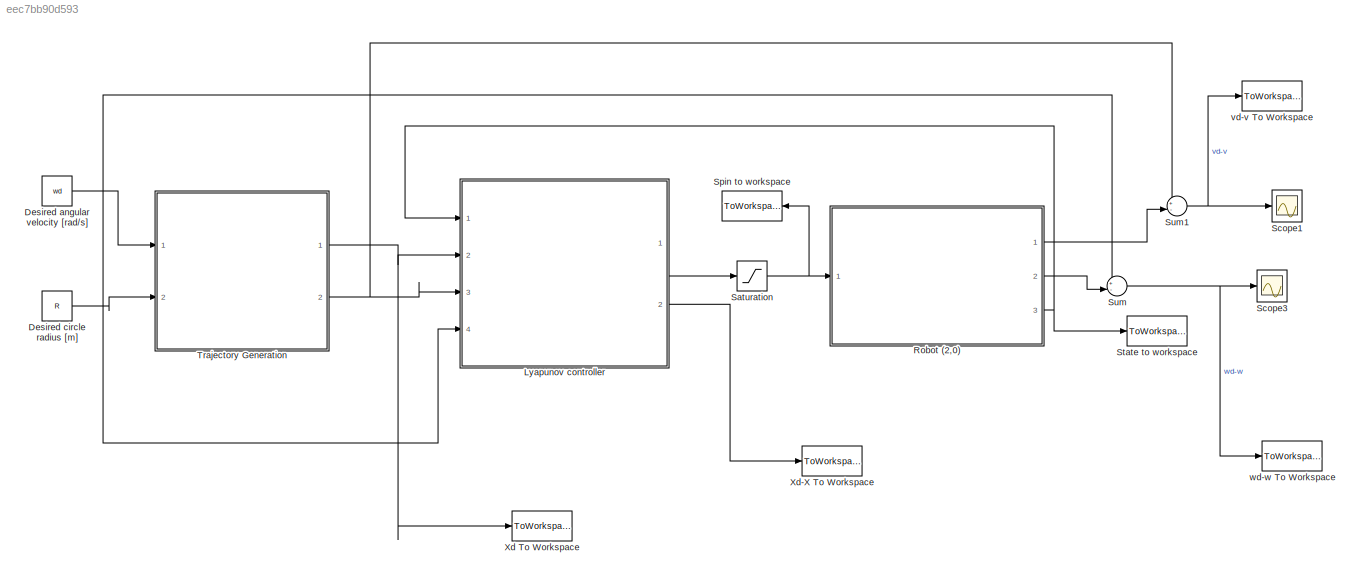
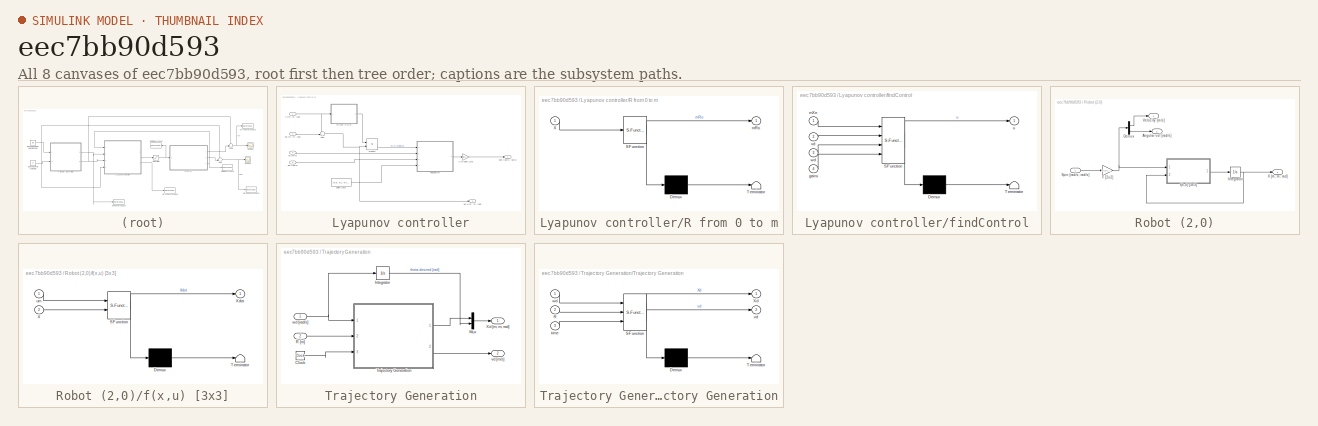
[diagram: thumbnail index - all 8 canvases of the model, root first then tree order]
MODEL slx_eec7bb90d593
KIND model
CONFIG AbsTol = auto
CONFIG EnableMultiTasking = off
CONFIG FixedStep = auto
CONFIG MaxStep = auto
CONFIG MinStep = auto
CONFIG RelTol = 1e-3
CONFIG SampleTimeConstraint = Unconstrained
CONFIG Solver = VariableStepAuto
CONFIG SolverName = VariableStepAuto
CONFIG StartTime = 0.0
CONFIG StopTime = time
BLOCK [Constant] Desired angular velocity [rad//s]
  Value = wd
BLOCK [Constant] Desired circle radius [m]
  Value = R
BLOCK [SubSystem] Lyapunov controller
  Ports = [4, 2]
  RequestExecContextInheritance = off
  Variant = off
BLOCK [Product] Lyapunov controller/Product
  InputSameDT = off
  Multiplication = Matrix(*)
  OutDataTypeStr = Inherit: Inherit via internal rule
  Ports = [2, 1]
  RndMeth = Floor
  SaturateOnIntegerOverflow = off
BLOCK [SubSystem] Lyapunov controller/R from 0 to m
  ErrorFcn = Stateflow.Translate.translate
  PermitHierarchicalResolution = ExplicitOnly
  Ports = [1, 1]
  RequestExecContextInheritance = off
  SFBlockType = MATLAB Function
  TreatAsAtomicUnit = on
  Variant = off
BLOCK [Demux] Lyapunov controller/R from 0 to m/ Demux 
  Outputs = 1
  Ports = [1, 1]
BLOCK [S-Function] Lyapunov controller/R from 0 to m/ SFunction 
  EnableBusSupport = on
  FunctionName = sf_sfun
  PortCounts = [1 2]
  Ports = [1, 2]
  SFcnIsStateOwnerBlock = off
  SFunctionDeploymentMode = off
  Tag = Stateflow S-Function lyapunovControlLaw 1
BLOCK [Terminator] Lyapunov controller/R from 0 to m/ Terminator 
BLOCK [Inport] Lyapunov controller/R from 0 to m/X
  IconDisplay = Port number
BLOCK [Outport] Lyapunov controller/R from 0 to m/mRo
  IconDisplay = Port number
BLOCK [Sum] Lyapunov controller/Sum
  IconShape = round
  InputSameDT = off
  Inputs = -+|
  OutDataTypeStr = Inherit: Inherit via internal rule
  Ports = [2, 1]
  SaturateOnIntegerOverflow = off
BLOCK [Inport] Lyapunov controller/X [m; m; rad]
  IconDisplay = Port number
BLOCK [Inport] Lyapunov controller/Xd [m; m; rad]
  IconDisplay = Port number
  Port = 2
BLOCK [Outport] Lyapunov controller/Xd-X [m; m; rad]
  IconDisplay = Port number
  Port = 2
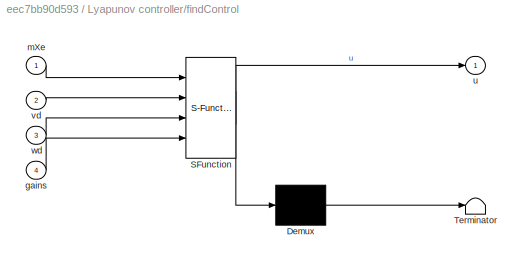
BLOCK [SubSystem] Lyapunov controller/findControl
  ErrorFcn = Stateflow.Translate.translate
  PermitHierarchicalResolution = ExplicitOnly
  Ports = [4, 1]
  RequestExecContextInheritance = off
  SFBlockType = MATLAB Function
  TreatAsAtomicUnit = on
  Variant = off
BLOCK [Demux] Lyapunov controller/findControl/ Demux 
  Outputs = 1
  Ports = [1, 1]
BLOCK [S-Function] Lyapunov controller/findControl/ SFunction 
  EnableBusSupport = on
  FunctionName = sf_sfun
  PortCounts = [4 2]
  Ports = [4, 2]
  SFcnIsStateOwnerBlock = off
  SFunctionDeploymentMode = off
  Tag = Stateflow S-Function lyapunovControlLaw 4
BLOCK [Terminator] Lyapunov controller/findControl/ Terminator 
BLOCK [Inport] Lyapunov controller/findControl/gains
  IconDisplay = Port number
  Port = 4
BLOCK [Inport] Lyapunov controller/findControl/mXe
  IconDisplay = Port number
BLOCK [Outport] Lyapunov controller/findControl/u
  IconDisplay = Port number
BLOCK [Inport] Lyapunov controller/findControl/vd
  IconDisplay = Port number
  Port = 2
BLOCK [Inport] Lyapunov controller/findControl/wd
  IconDisplay = Port number
  Port = 3
BLOCK [Constant] Lyapunov controller/gains [3x1]
  Value = [Kx; Ky; Ktheta]
BLOCK [Outport] Lyapunov controller/spin [rad//s; rad//s]
  IconDisplay = Port number
BLOCK [Gain] Lyapunov controller/u to spins [2x2]
  Gain = [1/r L/r; 1/r -L/r]
  Multiplication = Matrix(K*u)
  OutDataTypeStr = Inherit: Inherit via internal rule
  ParamDataTypeStr = Inherit: Inherit via internal rule
  SaturateOnIntegerOverflow = off
BLOCK [Inport] Lyapunov controller/vd [m//s]
  IconDisplay = Port number
  Port = 3
BLOCK [Inport] Lyapunov controller/wd [rad//s]
  IconDisplay = Port number
  Port = 4
BLOCK [SubSystem] Robot (2,0)
  Ports = [1, 3]
  RequestExecContextInheritance = off
  Variant = off
BLOCK [Outport] Robot (2,0)/Angular vel [rad//s]
  IconDisplay = Port number
  Port = 2
BLOCK [Demux] Robot (2,0)/Demux
  DisplayOption = bar
  Outputs = 2
  Ports = [1, 2]
BLOCK [Gain] Robot (2,0)/F [2x2]
  Gain = [r/2 r/2; r/(2*L) -r/(2*L)]
  Multiplication = Matrix(K*u)
  OutDataTypeStr = Inherit: Inherit via internal rule
  ParamDataTypeStr = Inherit: Inherit via internal rule
  SaturateOnIntegerOverflow = off
BLOCK [Integrator] Robot (2,0)/Integrator
  InitialCondition = Xstart
  Ports = [1, 1]
BLOCK [Inport] Robot (2,0)/Spin [rad//s; rad//s]
  IconDisplay = Port number
BLOCK [Outport] Robot (2,0)/Velocity [m//s]
  IconDisplay = Port number
BLOCK [Outport] Robot (2,0)/X [m; m; rad]
  IconDisplay = Port number
  Port = 3
BLOCK [SubSystem] Robot (2,0)/f(x,u) [3x3]
  ErrorFcn = Stateflow.Translate.translate
  PermitHierarchicalResolution = ExplicitOnly
  Ports = [2, 1]
  RequestExecContextInheritance = off
  SFBlockType = MATLAB Function
  TreatAsAtomicUnit = on
  Variant = off
BLOCK [Demux] Robot (2,0)/f(x,u) [3x3]/ Demux 
  Outputs = 1
  Ports = [1, 1]
BLOCK [S-Function] Robot (2,0)/f(x,u) [3x3]/ SFunction 
  EnableBusSupport = on
  FunctionName = sf_sfun
  PortCounts = [2 2]
  Ports = [2, 2]
  SFcnIsStateOwnerBlock = off
  SFunctionDeploymentMode = off
  Tag = Stateflow S-Function lyapunovControlLaw 2
BLOCK [Terminator] Robot (2,0)/f(x,u) [3x3]/ Terminator 
BLOCK [Inport] Robot (2,0)/f(x,u) [3x3]/X
  IconDisplay = Port number
  Port = 2
BLOCK [Outport] Robot (2,0)/f(x,u) [3x3]/Xdot
  IconDisplay = Port number
BLOCK [Inport] Robot (2,0)/f(x,u) [3x3]/um
  IconDisplay = Port number
BLOCK [Saturate] Saturation
  InputPortMap = u0
  LowerLimit = satMin
  Ports = [1, 1]
  UpperLimit = satMax
BLOCK [Scope] Scope1
  NumInputPorts = 1
  Ports = [1]
  ScopeSpecificationString = Simulink.scopes.TimeScopeBlockCfg('CurrentConfiguration', extmgr.ConfigurationSet(extmgr.Configuration('Core','General UI',true),extmgr.Configuration('Core','Source UI',true),extmgr.Configuration('Sources','WiredSimulink',true),extmgr.Configuration('Visuals','Time Domain',true),extmgr.Configuration('Tools','Plot Navigation',true),extmgr.Configuration('Tools','Measurements',true)),'Version','2017b'...<+1ch>
BLOCK [Scope] Scope3
  NumInputPorts = 1
  Ports = [1]
  ScopeSpecificationString = Simulink.scopes.TimeScopeBlockCfg('CurrentConfiguration', extmgr.ConfigurationSet(extmgr.Configuration('Core','General UI',true),extmgr.Configuration('Core','Source UI',true),extmgr.Configuration('Sources','WiredSimulink',true,'DataLoggingVariableName','ScopeData1'),extmgr.Configuration('Visuals','Time Domain',true),extmgr.Configuration('Tools','Plot Navigation',true),extmgr.Configuration('Tools',...<+40ch>
BLOCK [ToWorkspace] Spin to workspace
  FixptAsFi = on
  MaxDataPoints = inf
  Ports = [1]
  SampleTime = -1
  Save2DSignal = 2-D array (concatenate along first dimension)
  VariableName = spin
BLOCK [ToWorkspace] State to workspace
  FixptAsFi = on
  MaxDataPoints = inf
  Ports = [1]
  SampleTime = -1
  Save2DSignal = 2-D array (concatenate along first dimension)
  VariableName = X
BLOCK [Sum] Sum
  IconShape = round
  InputSameDT = off
  Inputs = +-|
  OutDataTypeStr = Inherit: Inherit via internal rule
  Ports = [2, 1]
  SaturateOnIntegerOverflow = off
BLOCK [Sum] Sum1
  IconShape = round
  InputSameDT = off
  Inputs = +-|
  OutDataTypeStr = Inherit: Inherit via internal rule
  Ports = [2, 1]
  SaturateOnIntegerOverflow = off
BLOCK [SubSystem] Trajectory Generation
  Ports = [2, 2]
  RequestExecContextInheritance = off
  Variant = off
BLOCK [Clock] Trajectory Generation/Clock
BLOCK [Integrator] Trajectory Generation/Integrator
  InitialCondition = thetaInitial
  Ports = [1, 1]
BLOCK [Mux] Trajectory Generation/Mux
  DisplayOption = bar
  Inputs = 2
  Ports = [2, 1]
BLOCK [Inport] Trajectory Generation/R [m]
  IconDisplay = Port number
  Port = 2
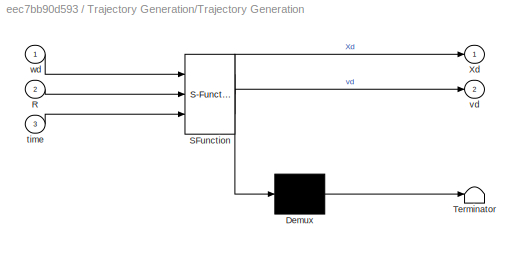
BLOCK [SubSystem] Trajectory Generation/Trajectory Generation
  ErrorFcn = Stateflow.Translate.translate
  PermitHierarchicalResolution = ExplicitOnly
  Ports = [3, 2]
  RequestExecContextInheritance = off
  SFBlockType = MATLAB Function
  TreatAsAtomicUnit = on
  Variant = off
BLOCK [Demux] Trajectory Generation/Trajectory Generation/ Demux 
  Outputs = 1
  Ports = [1, 1]
BLOCK [S-Function] Trajectory Generation/Trajectory Generation/ SFunction 
  EnableBusSupport = on
  FunctionName = sf_sfun
  PortCounts = [3 3]
  Ports = [3, 3]
  SFcnIsStateOwnerBlock = off
  SFunctionDeploymentMode = off
  Tag = Stateflow S-Function lyapunovControlLaw 3
BLOCK [Terminator] Trajectory Generation/Trajectory Generation/ Terminator 
BLOCK [Inport] Trajectory Generation/Trajectory Generation/R
  IconDisplay = Port number
  Port = 2
BLOCK [Outport] Trajectory Generation/Trajectory Generation/Xd
  IconDisplay = Port number
BLOCK [Inport] Trajectory Generation/Trajectory Generation/time
  IconDisplay = Port number
  Port = 3
BLOCK [Outport] Trajectory Generation/Trajectory Generation/vd
  IconDisplay = Port number
  Port = 2
BLOCK [Inport] Trajectory Generation/Trajectory Generation/wd
  IconDisplay = Port number
BLOCK [Outport] Trajectory Generation/Xd [m; m; rad]
  IconDisplay = Port number
BLOCK [Outport] Trajectory Generation/vd [m//s]
  IconDisplay = Port number
  Port = 2
BLOCK [Inport] Trajectory Generation/wd [rad//s]
  IconDisplay = Port number
BLOCK [ToWorkspace] Xd To Workspace
  FixptAsFi = on
  MaxDataPoints = inf
  Ports = [1]
  SampleTime = -1
  Save2DSignal = 2-D array (concatenate along first dimension)
  VariableName = Xd
BLOCK [ToWorkspace] Xd-X To Workspace
  FixptAsFi = on
  MaxDataPoints = inf
  Ports = [1]
  SampleTime = -1
  Save2DSignal = 2-D array (concatenate along first dimension)
  VariableName = Xd_X
BLOCK [ToWorkspace] vd-v To Workspace
  FixptAsFi = on
  MaxDataPoints = inf
  Ports = [1]
  SampleTime = -1
  Save2DSignal = 2-D array (concatenate along first dimension)
  VariableName = vd_v
BLOCK [ToWorkspace] wd-w To Workspace
  FixptAsFi = on
  MaxDataPoints = inf
  Ports = [1]
  SampleTime = -1
  Save2DSignal = 2-D array (concatenate along first dimension)
  VariableName = wd_w
NET Desired angular velocity [rad//s]:1 -> Lyapunov controller:4, Sum:1, Trajectory Generation:1
LINE Desired circle radius [m]:1 -> Trajectory Generation:2
LINE Lyapunov controller/Product:1 -> Lyapunov controller/findControl:1
LINE Lyapunov controller/R from 0 to m:1 -> Lyapunov controller/Product:1
NET Lyapunov controller/Sum:1 -> Lyapunov controller/Product:2, Lyapunov controller/Xd-X [m; m; rad]:1
NET Lyapunov controller/X [m; m; rad]:1 -> Lyapunov controller/R from 0 to m:1, Lyapunov controller/Sum:1
LINE Lyapunov controller/Xd [m; m; rad]:1 -> Lyapunov controller/Sum:2
LINE Lyapunov controller/findControl:1 -> Lyapunov controller/u to spins [2x2]:1
LINE Lyapunov controller/gains [3x1]:1 -> Lyapunov controller/findControl:4
LINE Lyapunov controller/u to spins [2x2]:1 -> Lyapunov controller/spin [rad//s; rad//s]:1
LINE Lyapunov controller/vd [m//s]:1 -> Lyapunov controller/findControl:2
LINE Lyapunov controller/wd [rad//s]:1 -> Lyapunov controller/findControl:3
LINE Lyapunov controller:1 -> Saturation:1
LINE Lyapunov controller:2 -> Xd-X To Workspace:1
LINE Robot (2,0)/Demux:1 -> Robot (2,0)/Velocity [m//s]:1
LINE Robot (2,0)/Demux:2 -> Robot (2,0)/Angular vel [rad//s]:1
NET Robot (2,0)/F [2x2]:1 -> Robot (2,0)/Demux:1, Robot (2,0)/f(x,u) [3x3]:1
NET Robot (2,0)/Integrator:1 -> Robot (2,0)/X [m; m; rad]:1, Robot (2,0)/f(x,u) [3x3]:2
LINE Robot (2,0)/Spin [rad//s; rad//s]:1 -> Robot (2,0)/F [2x2]:1
LINE Robot (2,0)/f(x,u) [3x3]:1 -> Robot (2,0)/Integrator:1
LINE Robot (2,0):1 -> Sum1:2
LINE Robot (2,0):2 -> Sum:2
NET Robot (2,0):3 -> Lyapunov controller:1, State to workspace:1
NET Saturation:1 -> Robot (2,0):1, Spin to workspace:1
NET Sum1:1 -> Scope1:1, vd-v To Workspace:1
NET Sum:1 -> Scope3:1, wd-w To Workspace:1
LINE Trajectory Generation/Clock:1 -> Trajectory Generation/Trajectory Generation:3
LINE Trajectory Generation/Integrator:1 -> Trajectory Generation/Mux:2
LINE Trajectory Generation/Mux:1 -> Trajectory Generation/Xd [m; m; rad]:1
LINE Trajectory Generation/R [m]:1 -> Trajectory Generation/Trajectory Generation:2
LINE Trajectory Generation/Trajectory Generation:1 -> Trajectory Generation/Mux:1
LINE Trajectory Generation/Trajectory Generation:2 -> Trajectory Generation/vd [m//s]:1
NET Trajectory Generation/wd [rad//s]:1 -> Trajectory Generation/Integrator:1, Trajectory Generation/Trajectory Generation:1
NET Trajectory Generation:1 -> Lyapunov controller:2, Xd To Workspace:1
NET Trajectory Generation:2 -> Lyapunov controller:3, Sum1:1
note: NET lines group one-source signal fan-out (src -> all destinations, sorted); 1:1 wires keep LINE
CHART Lyapunov controller/R from 0 to m states=1 transitions=1
  STATE_LABEL 'eML_blk_kernel()'
  STATE_LABEL 'SCRIPT:\nfunction mRo = rotationMatrix(X)\n\nmRo = [cos(X(3)) sin(X(3)) 0; -sin(X(3)) cos(X(3)) 0; 0 0 1];\n'
CHART Robot (2,0)/f(x,u) [3x3] states=1 transitions=1
  STATE_LABEL 'eML_blk_kernel()'
  STATE_LABEL 'SCRIPT:\nfunction Xdot  = evolutionModel(um, X)\n\nXdot = zeros(3,1);\nXdot(1) = um(1) * cos(X(3));\nXdot(2) = um(1) * sin(X(3));\nXdot(3) = um(2);\n'
CHART Trajectory Generation/Trajectory Generation states=1 transitions=1
  STATE_LABEL 'eML_blk_kernel()'
  STATE_LABEL 'SCRIPT:\nfunction [Xd, vd] = trajectoryGeneration(wd, R, time)\n\nXd = [R*cos(wd*time); R*sin(wd*time)];\n\nvd = R*wd;\n\n\n'
CHART Lyapunov controller/findControl states=1 transitions=1
  STATE_LABEL 'eML_blk_kernel()'
  STATE_LABEL 'SCRIPT:\nfunction u = findControl(mXe, vd, wd, gains)\n\nu = [vd * cos(mXe(3)) + gains(1) * mXe(1);\n    wd + gains(2) * vd * (sin(mXe(3))/mXe(3)) * mXe(2) + gains(3) * mXe(3)];\n'
